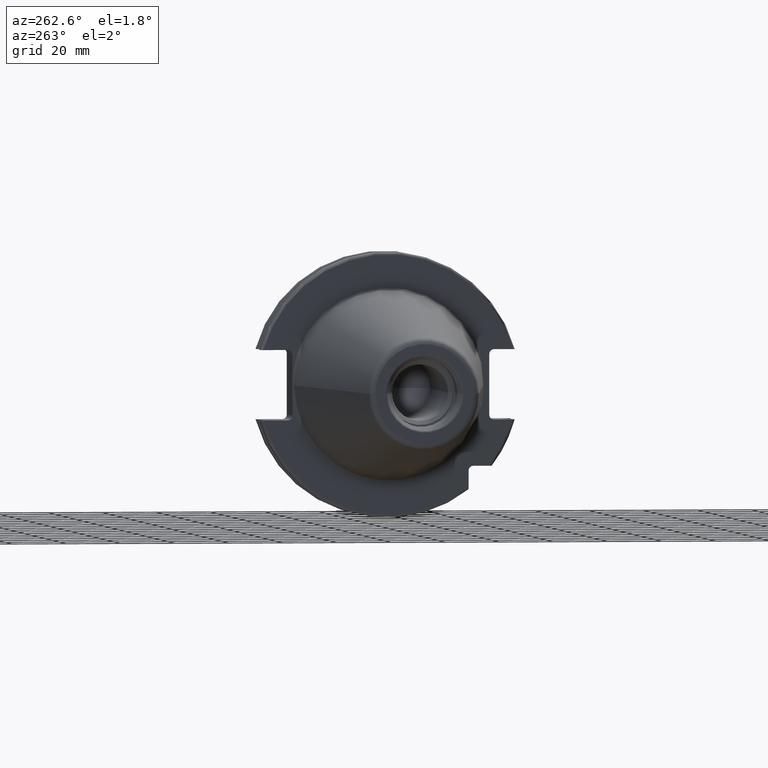
[diagram: clean part render]
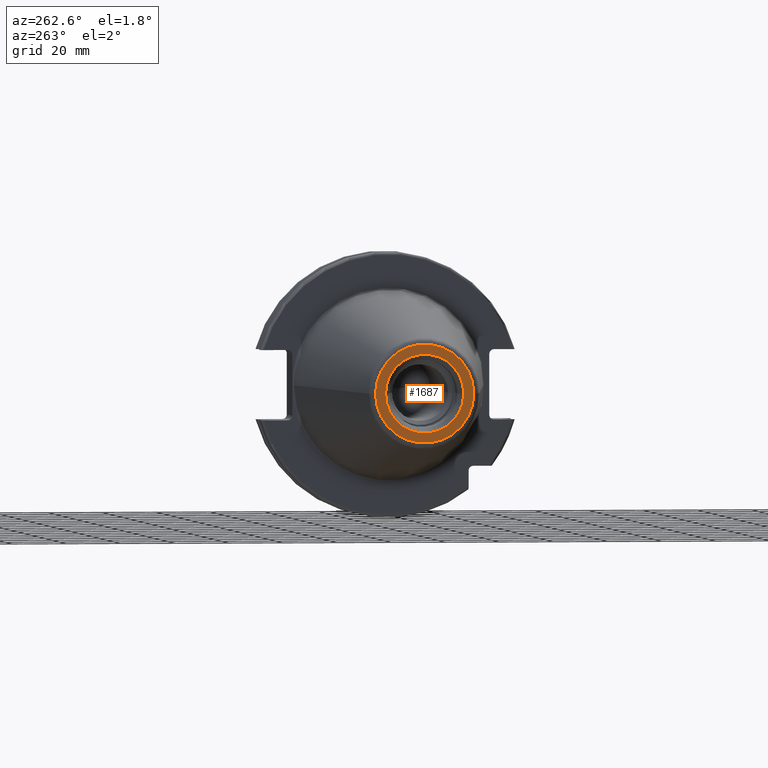
[diagram: same view with one face highlighted and labeled with its STEP entity id]
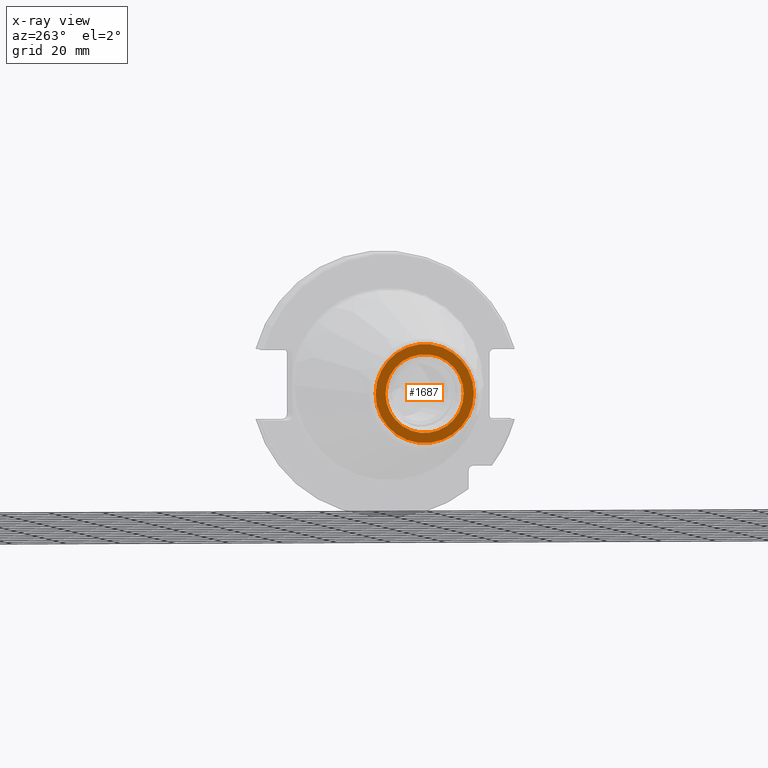
[diagram: x-ray of the same camera — body ghosted, the highlighted face saturated]
A machine part, auxiliary view. The second image highlights one B-rep face of the part: STEP entity #1687.
The next image is the same camera in x-ray: the body ghosted, the highlighted face saturated — about 0% of this face is hidden behind the body in this view.
In plain terms, the highlighted planar face has unit normal (1, 0, 0).
Its self-contained STEP definition (entity closure, byte-faithful):
#2=CARTESIAN_POINT('',(-1.016E2,0.E0,0.E0));
#3=DIRECTION('',(-1.E0,0.E0,0.E0));
#4=DIRECTION('',(0.E0,1.E0,0.E0));
#5=AXIS2_PLACEMENT_3D('',#2,#3,#4);
#7=CARTESIAN_POINT('',(-1.016E2,0.E0,0.E0));
#8=DIRECTION('',(1.E0,0.E0,0.E0));
#9=DIRECTION('',(0.E0,1.E0,0.E0));
#10=AXIS2_PLACEMENT_3D('',#7,#8,#9);
#12=CARTESIAN_POINT('',(-1.016E2,0.E0,0.E0));
#13=DIRECTION('',(1.E0,0.E0,0.E0));
#14=DIRECTION('',(0.E0,1.E0,0.E0));
#15=AXIS2_PLACEMENT_3D('',#12,#13,#14);
#17=CARTESIAN_POINT('',(-1.016E2,0.E0,0.E0));
#18=DIRECTION('',(1.E0,0.E0,0.E0));
#19=DIRECTION('',(0.E0,-1.E0,0.E0));
#20=AXIS2_PLACEMENT_3D('',#17,#18,#19);
#1399=CARTESIAN_POINT('',(-1.016E2,1.816144700117E1,0.E0));
#1401=VERTEX_POINT('',#1399);
#1403=CARTESIAN_POINT('',(-1.016E2,-1.816144700117E1,0.E0));
#1405=VERTEX_POINT('',#1403);
#1462=CARTESIAN_POINT('',(-1.016E2,1.446188021535E1,0.E0));
#1463=CARTESIAN_POINT('',(-1.016E2,-1.446188021535E1,0.E0));
#1464=VERTEX_POINT('',#1462);
#1465=VERTEX_POINT('',#1463);
#1670=CARTESIAN_POINT('',(-1.016E2,0.E0,0.E0));
#1671=DIRECTION('',(1.E0,0.E0,0.E0));
#1672=DIRECTION('',(0.E0,-1.E0,0.E0));
#1673=AXIS2_PLACEMENT_3D('',#1670,#1671,#1672);
#1674=PLANE('',#1673);
#1676=ORIENTED_EDGE('',*,*,#1675,.F.);
#1678=ORIENTED_EDGE('',*,*,#1677,.T.);
#1679=EDGE_LOOP('',(#1676,#1678));
#1680=FACE_OUTER_BOUND('',#1679,.F.);
#1682=ORIENTED_EDGE('',*,*,#1681,.F.);
#1684=ORIENTED_EDGE('',*,*,#1683,.F.);
#1685=EDGE_LOOP('',(#1682,#1684));
#1686=FACE_BOUND('',#1685,.F.);
#1687=ADVANCED_FACE('',(#1680,#1686),#1674,.F.);
#6=CIRCLE('',#5,1.816144700117E1);
#11=CIRCLE('',#10,1.816144700117E1);
#16=CIRCLE('',#15,1.446188021535E1);
#21=CIRCLE('',#20,1.446188021535E1);
#1675=EDGE_CURVE('',#1401,#1405,#6,.T.);
#1677=EDGE_CURVE('',#1401,#1405,#11,.T.);
#1681=EDGE_CURVE('',#1464,#1465,#16,.T.);
#1683=EDGE_CURVE('',#1465,#1464,#21,.T.);